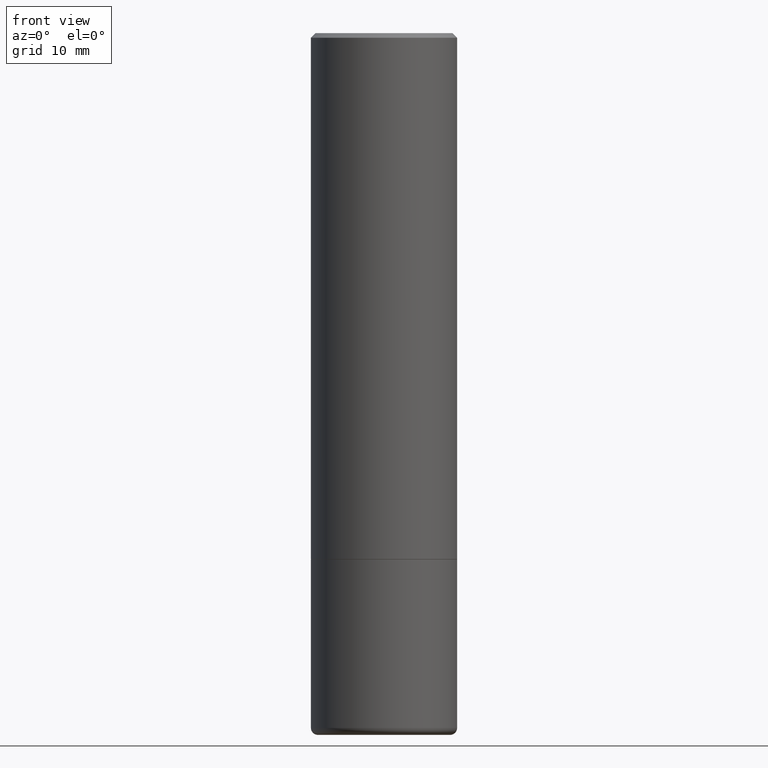
[diagram: clean part render]
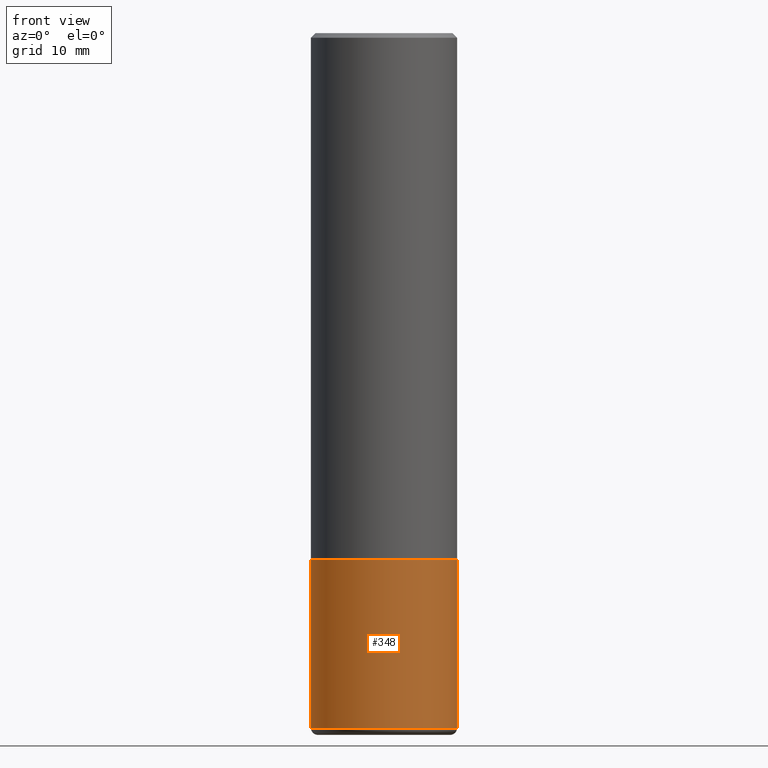
[diagram: same view with one face highlighted and labeled with its STEP entity id]
A machine part, front view. The second image highlights one B-rep face of the part: STEP entity #348.
In plain terms, the highlighted cylindrical surface (partial cylindrical patch) has radius 7.9375 mm, axis along (-0, 0, 1).
Its self-contained STEP definition (entity closure, byte-faithful):
#1 = ORIENTED_EDGE ( 'NONE', *, *, #139, .T. ) ;
#14 = VECTOR ( 'NONE', #173, 39.37007874015748143 ) ;
#21 = DIRECTION ( 'NONE',  ( 1.000000000000000000, -6.982962677686269077E-15, 0.000000000000000000 ) ) ;
#23 = CARTESIAN_POINT ( 'NONE',  ( -0.3125000000000000000, 2.220446049250313081E-15, -1.537167215704658232E-29 ) ) ;
#41 = FACE_OUTER_BOUND ( 'NONE', #241, .T. ) ;
#45 = DIRECTION ( 'NONE',  ( -2.445468806185136597E-29, 3.491481338843145583E-15, 1.000000000000000000 ) ) ;
#62 = AXIS2_PLACEMENT_3D ( 'NONE', #143, #45, #270 ) ;
#72 = VERTEX_POINT ( 'NONE', #421 ) ;
#86 = CARTESIAN_POINT ( 'NONE',  ( 0.3125000000000000000, -1.003800884917403837E-14, -2.250000000000000444 ) ) ;
#94 = ORIENTED_EDGE ( 'NONE', *, *, #147, .F. ) ;
#126 = CARTESIAN_POINT ( 'NONE',  ( 0.3125000000000000000, -1.255187541314110291E-14, -2.970000000000000195 ) ) ;
#130 = CYLINDRICAL_SURFACE ( 'NONE', #62, 0.3125000000000000000 ) ;
#139 = EDGE_CURVE ( 'NONE', #430, #243, #267, .T. ) ;
#143 = CARTESIAN_POINT ( 'NONE',  ( 0.000000000000000000, 0.000000000000000000, 0.000000000000000000 ) ) ;
#147 = EDGE_CURVE ( 'NONE', #72, #216, #336, .T. ) ;
#149 = DIRECTION ( 'NONE',  ( -2.445468806185136597E-29, 3.491481338843145583E-15, 1.000000000000000000 ) ) ;
#153 = AXIS2_PLACEMENT_3D ( 'NONE', #320, #394, #21 ) ;
#169 = CIRCLE ( 'NONE', #308, 0.3125000000000000000 ) ;
#173 = DIRECTION ( 'NONE',  ( -2.445468806185136877E-29, 3.491481338843145188E-15, 1.000000000000000000 ) ) ;
#179 = EDGE_CURVE ( 'NONE', #72, #430, #366, .T. ) ;
#185 = ORIENTED_EDGE ( 'NONE', *, *, #317, .F. ) ;
#216 = VERTEX_POINT ( 'NONE', #274 ) ;
#241 = EDGE_LOOP ( 'NONE', ( #94, #381, #1, #185 ) ) ;
#243 = VERTEX_POINT ( 'NONE', #86 ) ;
#267 = LINE ( 'NONE', #328, #14 ) ;
#270 = DIRECTION ( 'NONE',  ( 1.000000000000000000, -6.982962677686266711E-15, 4.876176775795936353E-29 ) ) ;
#274 = CARTESIAN_POINT ( 'NONE',  ( -0.3125000000000000000, -6.892320245130297635E-15, -2.250000000000000444 ) ) ;
#275 = CARTESIAN_POINT ( 'NONE',  ( 5.502304813916558464E-29, -7.855833012397078448E-15, -2.250000000000000444 ) ) ;
#290 = DIRECTION ( 'NONE',  ( -2.445468806185136877E-29, 3.491481338843145188E-15, 1.000000000000000000 ) ) ;
#308 = AXIS2_PLACEMENT_3D ( 'NONE', #275, #149, #416 ) ;
#317 = EDGE_CURVE ( 'NONE', #216, #243, #169, .T. ) ;
#320 = CARTESIAN_POINT ( 'NONE',  ( 7.263042354369856275E-29, -1.036969957636414298E-14, -2.970000000000000195 ) ) ;
#328 = CARTESIAN_POINT ( 'NONE',  ( 0.3125000000000000000, -2.182175836776958347E-15, 1.523805242436230075E-29 ) ) ;
#336 = LINE ( 'NONE', #23, #431 ) ;
#348 = ADVANCED_FACE ( 'NONE', ( #41 ), #130, .T. ) ;
#366 = CIRCLE ( 'NONE', #153, 0.3125000000000000000 ) ;
#381 = ORIENTED_EDGE ( 'NONE', *, *, #179, .T. ) ;
#394 = DIRECTION ( 'NONE',  ( -2.445468806185136597E-29, 3.491481338843145583E-15, 1.000000000000000000 ) ) ;
#416 = DIRECTION ( 'NONE',  ( 1.000000000000000000, -6.982962677686269077E-15, 0.000000000000000000 ) ) ;
#421 = CARTESIAN_POINT ( 'NONE',  ( -0.3125000000000000000, -8.149253527113829903E-15, -2.970000000000000195 ) ) ;
#430 = VERTEX_POINT ( 'NONE', #126 ) ;
#431 = VECTOR ( 'NONE', #290, 39.37007874015748143 ) ;